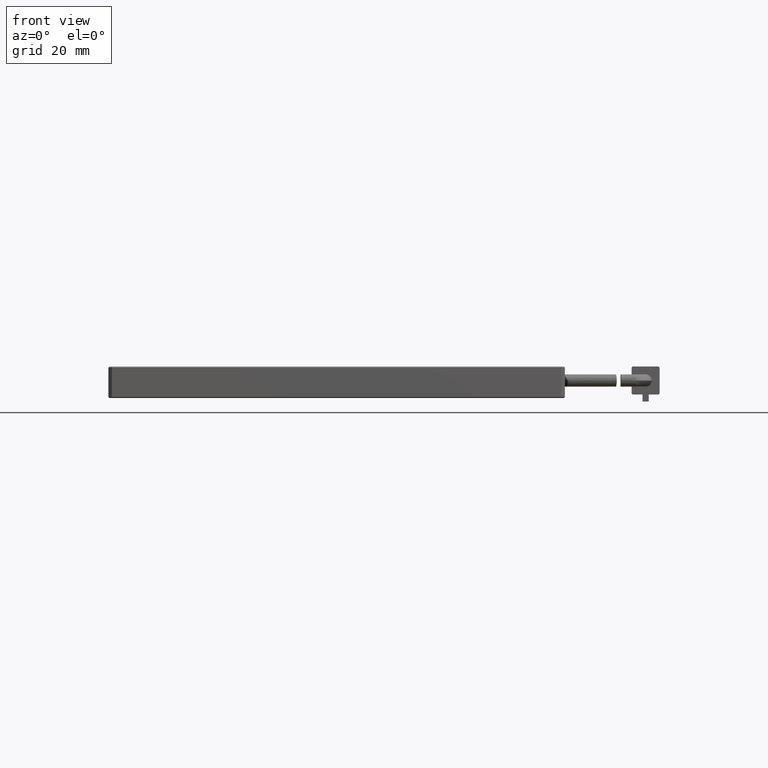
[diagram: clean part render]
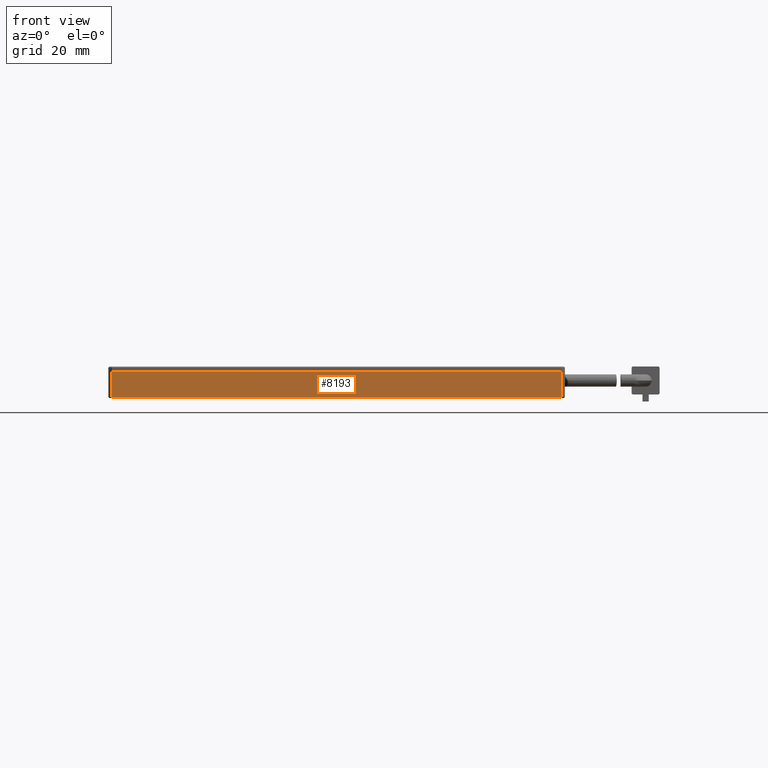
[diagram: same view with one face highlighted and labeled with its STEP entity id]
A machine part, front view. The second image highlights one B-rep face of the part: STEP entity #8193.
In plain terms, the highlighted planar face has unit normal (0, 1, 0).
Its self-contained STEP definition (entity closure, byte-faithful):
#38 = DIRECTION ( 'NONE',  ( 0.0000000000000000000, 1.000000000000000000, 0.0000000000000000000 ) ) ;
#635 = DIRECTION ( 'NONE',  ( -1.000000000000000000, -0.0000000000000000000, -0.0000000000000000000 ) ) ;
#909 = FACE_OUTER_BOUND ( 'NONE', #20088, .T. ) ;
#1149 = DIRECTION ( 'NONE',  ( -1.000000000000000000, 0.0000000000000000000, -0.0000000000000000000 ) ) ;
#2126 = CARTESIAN_POINT ( 'NONE',  ( 90.12907407407409700, -40.94055555555554800, -2.699999999999980200 ) ) ;
#3714 = VERTEX_POINT ( 'NONE', #2126 ) ;
#5122 = CARTESIAN_POINT ( 'NONE',  ( -38.87092592592590300, -40.94055555555554800, -2.699999999999977500 ) ) ;
#6587 = CARTESIAN_POINT ( 'NONE',  ( 90.12907407407406900, -40.94055555555554800, 4.500000000000000000 ) ) ;
#8193 = ADVANCED_FACE ( 'NONE', ( #909 ), #15260, .F. ) ;
#8335 = ORIENTED_EDGE ( 'NONE', *, *, #18152, .T. ) ;
#9008 = CARTESIAN_POINT ( 'NONE',  ( -37.87092592592590300, -40.94055555555554800, -2.699999999999977100 ) ) ;
#9575 = EDGE_CURVE ( 'NONE', #12305, #12010, #19021, .T. ) ;
#9826 = LINE ( 'NONE', #15097, #19329 ) ;
#10512 = EDGE_CURVE ( 'NONE', #14077, #3714, #17224, .T. ) ;
#10770 = CARTESIAN_POINT ( 'NONE',  ( 90.12907407407409700, -40.94055555555554800, 4.500000000000000000 ) ) ;
#12010 = VERTEX_POINT ( 'NONE', #19043 ) ;
#12286 = CARTESIAN_POINT ( 'NONE',  ( -37.87092592592590300, -40.94055555555554800, 4.500000000000000000 ) ) ;
#12305 = VERTEX_POINT ( 'NONE', #9008 ) ;
#12879 = DIRECTION ( 'NONE',  ( -0.0000000000000000000, 0.0000000000000000000, -1.000000000000000000 ) ) ;
#13803 = ORIENTED_EDGE ( 'NONE', *, *, #9575, .F. ) ;
#14077 = VERTEX_POINT ( 'NONE', #10770 ) ;
#14735 = AXIS2_PLACEMENT_3D ( 'NONE', #18670, #38, #20249 ) ;
#15097 = CARTESIAN_POINT ( 'NONE',  ( -38.87092592592590300, -40.94055555555554800, 4.500000000000000000 ) ) ;
#15172 = DIRECTION ( 'NONE',  ( 0.0000000000000000000, -0.0000000000000000000, 1.000000000000000000 ) ) ;
#15260 = PLANE ( 'NONE',  #14735 ) ;
#16735 = LINE ( 'NONE', #5122, #19684 ) ;
#17224 = LINE ( 'NONE', #6587, #17713 ) ;
#17334 = VECTOR ( 'NONE', #15172, 1000.000000000000000 ) ;
#17713 = VECTOR ( 'NONE', #12879, 1000.000000000000000 ) ;
#18152 = EDGE_CURVE ( 'NONE', #14077, #12010, #9826, .T. ) ;
#18670 = CARTESIAN_POINT ( 'NONE',  ( -38.87092592592590300, -40.94055555555554800, 4.500000000000000000 ) ) ;
#18809 = ORIENTED_EDGE ( 'NONE', *, *, #10512, .F. ) ;
#19021 = LINE ( 'NONE', #12286, #17334 ) ;
#19043 = CARTESIAN_POINT ( 'NONE',  ( -37.87092592592590300, -40.94055555555554800, 4.500000000000000000 ) ) ;
#19329 = VECTOR ( 'NONE', #1149, 1000.000000000000000 ) ;
#19581 = ORIENTED_EDGE ( 'NONE', *, *, #20142, .F. ) ;
#19684 = VECTOR ( 'NONE', #635, 1000.000000000000000 ) ;
#20088 = EDGE_LOOP ( 'NONE', ( #19581, #18809, #8335, #13803 ) ) ;
#20142 = EDGE_CURVE ( 'NONE', #3714, #12305, #16735, .T. ) ;
#20249 = DIRECTION ( 'NONE',  ( 0.0000000000000000000, -0.0000000000000000000, 1.000000000000000000 ) ) ;